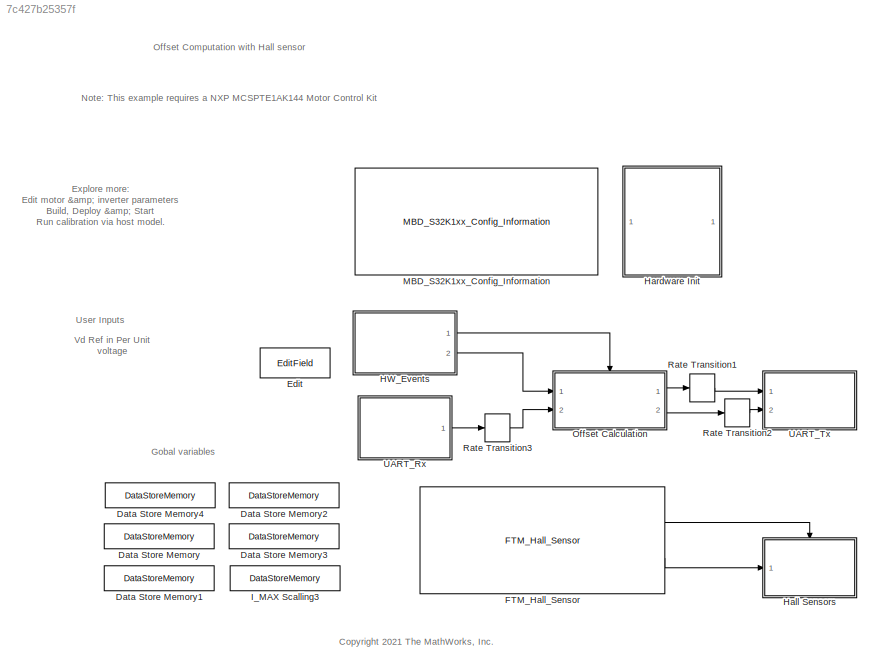
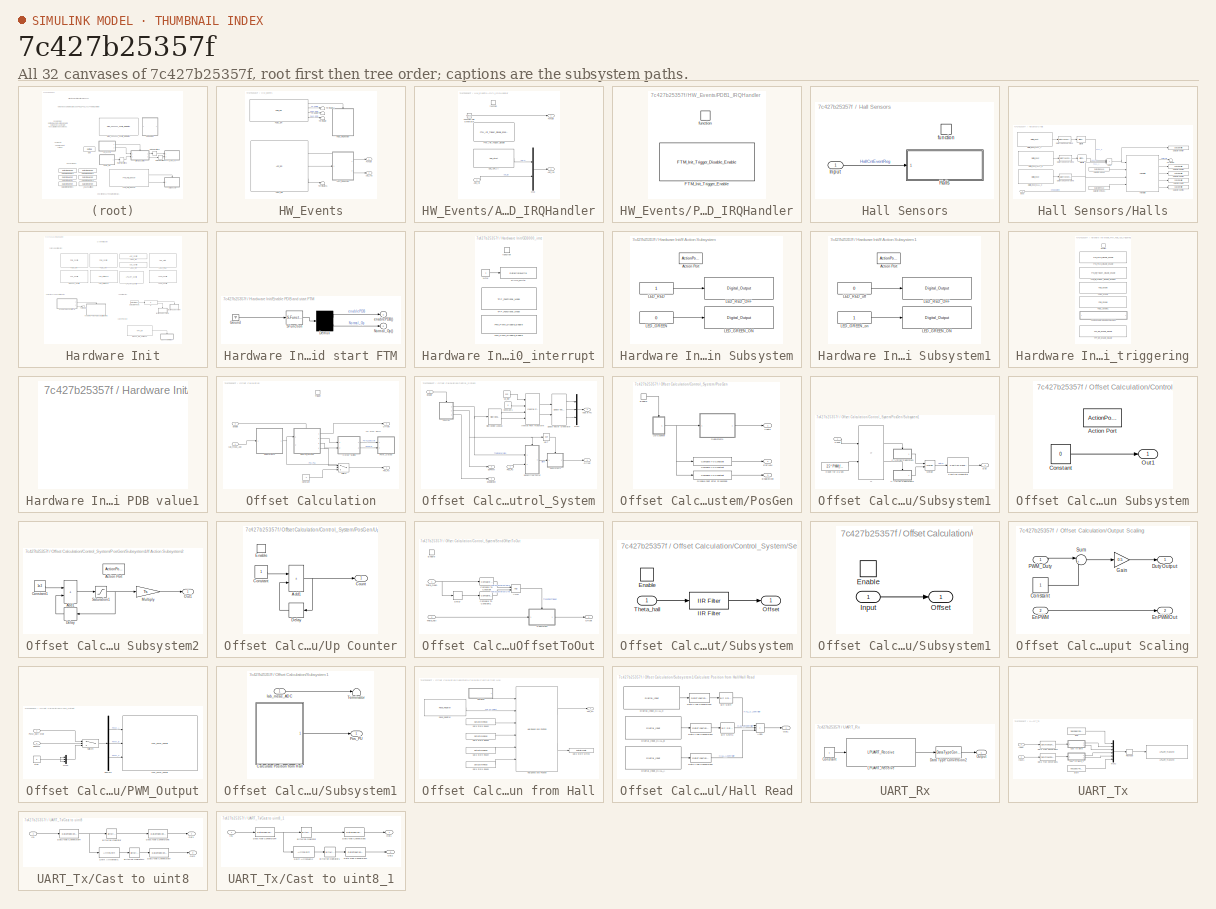
[diagram: thumbnail index - all 32 canvases of the model, root first then tree order]
MODEL slx_7c427b25357f
KIND model
CONFIG AbsTol = auto
CONFIG EnableMultiTasking = on
CONFIG FixedStep = 0.001
CONFIG InitFcn = mbd_s32k_consistency_checks(bdroot(gcs));
CONFIG MaxStep = auto
CONFIG MinStep = auto
CONFIG PreLoadFcn = mcb_pmsm_foc_hall_MCSPTE1AK144_data;
CONFIG RelTol = 1e-3
CONFIG SampleTimeConstraint = Unconstrained
CONFIG SolverName = FixedStepDiscrete
CONFIG StartTime = 0.0
CONFIG StopTime = 10.0
BLOCK [DataStoreMemory] Data Store Memory
  DataStoreName = HallStateChangeFlag
  ShowAdditionalParam = off
BLOCK [DataStoreMemory] Data Store Memory1
  DataStoreName = GlobalSpeedCount
  OutDataTypeStr = uint16
  ShowAdditionalParam = off
BLOCK [DataStoreMemory] Data Store Memory2
  DataStoreName = GlobalSpeedValidity
  NameLocation = left
  ShowAdditionalParam = off
BLOCK [DataStoreMemory] Data Store Memory3
  DataStoreName = GlobalDirection
  ShowAdditionalParam = off
BLOCK [DataStoreMemory] Data Store Memory4
  DataStoreName = GlobalHallState
  OutDataTypeStr = uint32
  ShowAdditionalParam = off
BLOCK [EditField] Edit
  Alignment = Center
  LabelPosition = Hide
  ShowInitialText = on
BLOCK [Reference] FTM_Hall_Sensor  REF=mbd_s32k1xx_ec_toolbox/Motor Control Blocks/FTM Blocks/FTM_Hall_Sensor
  Ports = [0, 2]
  SourceBlock = mbd_s32k1xx_ec_toolbox/Motor Control Blocks/FTM Blocks/FTM_Hall_Sensor
  SourceType = FTM_s32k_hall_sensor_block
BLOCK [SubSystem] HW_Events
  Ports = [0, 2]
  RequestExecContextInheritance = off
  TreatAsAtomicUnit = on
BLOCK [SubSystem] HW_Events/ADC1_IRQHandler
  Ports = [1, 2, 0, 1]
  RequestExecContextInheritance = off
  TreatAsAtomicUnit = on
BLOCK [Reference] HW_Events/ADC1_IRQHandler/ADC_AD4_IA  REF=mbd_s32k1xx_ec_toolbox/Motor Control Blocks/ADC Blocks/ADC_Start
  Ports = [0, 1]
  Priority = 2
  SourceBlock = mbd_s32k1xx_ec_toolbox/Motor Control Blocks/ADC Blocks/ADC_Start
  SourceType = adc_s32k_start_block
BLOCK [Inport] HW_Events/ADC1_IRQHandler/ADC_IB
BLOCK [Outport] HW_Events/ADC1_IRQHandler/ADC_res
  Port = 2
  VectorParamsAs1DForOutWhenUnconnected = off
BLOCK [Reference] HW_Events/ADC1_IRQHandler/FTM_Init_Trigger_Disable  REF=mbd_s32k1xx_ec_toolbox/Motor Control Blocks/FTM Blocks/FTM_Init_Trigger_Disable_Enable
  Ports = []
  Priority = 1
  SourceBlock = mbd_s32k1xx_ec_toolbox/Motor Control Blocks/FTM Blocks/FTM_Init_Trigger_Disable_Enable
  SourceType = FTM_s32k_init_disen
BLOCK [Outport] HW_Events/ADC1_IRQHandler/FcnCall
  VectorParamsAs1DForOutWhenUnconnected = off
BLOCK [Reference] HW_Events/ADC1_IRQHandler/Function-Call Generator  REF=simulink/Ports &
Subsystems/Function-Call
Generator
  Ports = [0, 1]
  SourceBlock = simulink/Ports &\nSubsystems/Function-Call\nGenerator
  SourceProductBaseCode = SL
  SourceType = Function-Call Generator
BLOCK [Mux] HW_Events/ADC1_IRQHandler/Mux
  DisplayOption = bar
  Inputs = 2
  Ports = [2, 1]
BLOCK [TriggerPort] HW_Events/ADC1_IRQHandler/function
  Ports = []
  StatesWhenEnabling = held
  TriggerType = function-call
  VariantControl = (inherit)
BLOCK [Reference] HW_Events/ADC1_ISR  REF=mbd_s32k1xx_ec_toolbox/Motor Control Blocks/ADC Blocks/ADC_ISR
  Ports = [0, 3]
  SourceBlock = mbd_s32k1xx_ec_toolbox/Motor Control Blocks/ADC Blocks/ADC_ISR
  SourceType = adc_s32k_isr_block
BLOCK [Outport] HW_Events/ADC_res
  Port = 2
  VectorParamsAs1DForOutWhenUnconnected = off
BLOCK [Outport] HW_Events/FcnCall
  VectorParamsAs1DForOutWhenUnconnected = off
BLOCK [SubSystem] HW_Events/PDB1_IRQHandler
  Ports = [0, 0, 0, 1]
  RequestExecContextInheritance = off
  TreatAsAtomicUnit = on
BLOCK [Reference] HW_Events/PDB1_IRQHandler/FTM_Init_Trigger_Enable  REF=mbd_s32k1xx_ec_toolbox/Motor Control Blocks/FTM Blocks/FTM_Init_Trigger_Disable_Enable
  Ports = []
  SourceBlock = mbd_s32k1xx_ec_toolbox/Motor Control Blocks/FTM Blocks/FTM_Init_Trigger_Disable_Enable
  SourceType = FTM_s32k_init_disen
BLOCK [TriggerPort] HW_Events/PDB1_IRQHandler/function
  Ports = []
  StatesWhenEnabling = held
  TriggerType = function-call
  VariantControl = (inherit)
BLOCK [Reference] HW_Events/PDB1_ISR  REF=mbd_s32k1xx_ec_toolbox/Motor Control Blocks/PDB Blocks/PDB_ISR
  Ports = [0, 4]
  Priority = 8
  SourceBlock = mbd_s32k1xx_ec_toolbox/Motor Control Blocks/PDB Blocks/PDB_ISR
  SourceType = pdb_s32k_isr_block
BLOCK [Terminator] HW_Events/Terminator
BLOCK [Terminator] HW_Events/Terminator1
BLOCK [Terminator] HW_Events/Terminator2
BLOCK [Terminator] HW_Events/Terminator6
BLOCK [SubSystem] Hall Sensors
  Ports = [1, 0, 0, 1]
  RequestExecContextInheritance = off
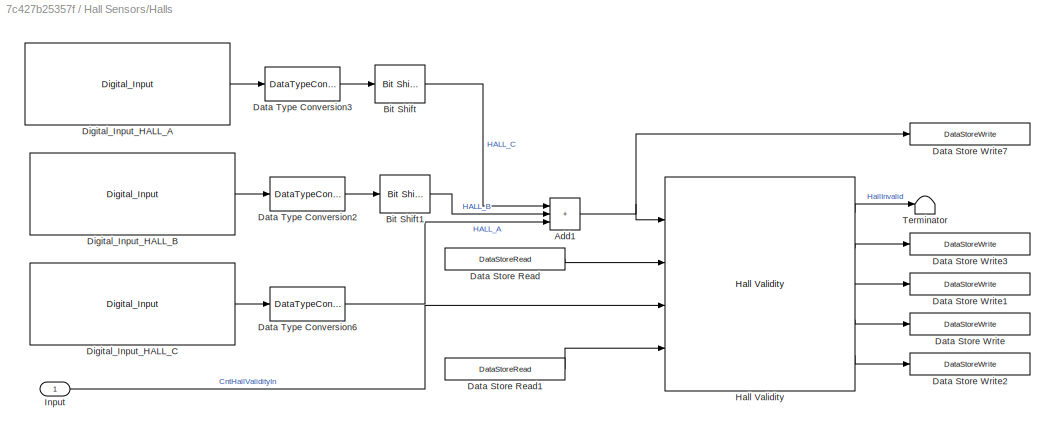
BLOCK [SubSystem] Hall Sensors/Halls
  MinAlgLoopOccurrences = on
  Ports = [1]
  Priority = 2
  RequestExecContextInheritance = off
  TreatAsAtomicUnit = on
BLOCK [Sum] Hall Sensors/Halls/Add1
  IconShape = rectangular
  Inputs = +++
  OutDataTypeStr = Inherit: Inherit via back propagation
  Ports = [3, 1]
BLOCK [Reference] Hall Sensors/Halls/Bit Shift  REF=hdlsllib/Logic and Bit
Operations/Bit Shift
  Ports = [1, 1]
  SourceBlock = hdlsllib/Logic and Bit\nOperations/Bit Shift
  SourceProductBaseCode = SL
  SourceType = Bit Shift
BLOCK [Reference] Hall Sensors/Halls/Bit Shift1  REF=hdlsllib/Logic and Bit
Operations/Bit Shift
  Ports = [1, 1]
  SourceBlock = hdlsllib/Logic and Bit\nOperations/Bit Shift
  SourceProductBaseCode = SL
  SourceType = Bit Shift
BLOCK [DataStoreRead] Hall Sensors/Halls/Data Store Read
  DataStoreName = GlobalHallState
  IndexOptions = Index vector (dialog)
  Indices = 1
  OutputSizes = 1
  Ports = [0, 1]
BLOCK [DataStoreRead] Hall Sensors/Halls/Data Store Read1
  DataStoreName = GlobalDirection
  IndexOptions = Index vector (dialog)
  Indices = 1
  OutputSizes = 1
  Ports = [0, 1]
BLOCK [DataStoreWrite] Hall Sensors/Halls/Data Store Write
  DataStoreName = GlobalSpeedValidity
  IndexOptions = Index vector (dialog)
  Indices = 1
  OutputSizes = 1
  Ports = [1]
BLOCK [DataStoreWrite] Hall Sensors/Halls/Data Store Write1
  DataStoreName = GlobalDirection
  IndexOptions = Index vector (dialog)
  Indices = 1
  OutputSizes = 1
  Ports = [1]
BLOCK [DataStoreWrite] Hall Sensors/Halls/Data Store Write2
  DataStoreName = HallStateChangeFlag
  IndexOptions = Index vector (dialog)
  Indices = 1
  OutputSizes = 1
  Ports = [1]
BLOCK [DataStoreWrite] Hall Sensors/Halls/Data Store Write3
  DataStoreName = GlobalSpeedCount
  IndexOptions = Index vector (dialog)
  Indices = 1
  OutputSizes = 1
  Ports = [1]
BLOCK [DataStoreWrite] Hall Sensors/Halls/Data Store Write7
  DataStoreName = GlobalHallState
  IndexOptions = Index vector (dialog)
  Indices = 1
  OutputSizes = 1
  Ports = [1]
  Priority = 1
BLOCK [DataTypeConversion] Hall Sensors/Halls/Data Type Conversion2
  OutDataTypeStr = uint32
  RndMeth = Floor
  SaturateOnIntegerOverflow = off
BLOCK [DataTypeConversion] Hall Sensors/Halls/Data Type Conversion3
  OutDataTypeStr = uint32
  RndMeth = Floor
  SaturateOnIntegerOverflow = off
BLOCK [DataTypeConversion] Hall Sensors/Halls/Data Type Conversion6
  OutDataTypeStr = uint32
  RndMeth = Floor
  SaturateOnIntegerOverflow = off
BLOCK [Reference] Hall Sensors/Halls/Digital_Input_HALL_A  REF=mbd_s32k1xx_ec_toolbox/GPIO Blocks/Digital_Input
  Ports = [0, 1]
  SourceBlock = mbd_s32k1xx_ec_toolbox/GPIO Blocks/Digital_Input
  SourceType = gpio_s32k_input
BLOCK [Reference] Hall Sensors/Halls/Digital_Input_HALL_B  REF=mbd_s32k1xx_ec_toolbox/GPIO Blocks/Digital_Input
  Ports = [0, 1]
  SourceBlock = mbd_s32k1xx_ec_toolbox/GPIO Blocks/Digital_Input
  SourceType = gpio_s32k_input
BLOCK [Reference] Hall Sensors/Halls/Digital_Input_HALL_C  REF=mbd_s32k1xx_ec_toolbox/GPIO Blocks/Digital_Input
  Ports = [0, 1]
  SourceBlock = mbd_s32k1xx_ec_toolbox/GPIO Blocks/Digital_Input
  SourceType = gpio_s32k_input
BLOCK [Reference] Hall Sensors/Halls/Hall Validity  REF=mcbpositiondecoderlib/Hall Validity
  Ports = [4, 5]
  SourceBlock = mcbpositiondecoderlib/Hall Validity
  SourceProductBaseCode = MT
  SourceType = Hall Validity
BLOCK [Inport] Hall Sensors/Halls/Input
BLOCK [Terminator] Hall Sensors/Halls/Terminator
BLOCK [Inport] Hall Sensors/Input
BLOCK [TriggerPort] Hall Sensors/function
  Ports = []
  StatesWhenEnabling = held
  TriggerType = function-call
  VariantControl = Variant
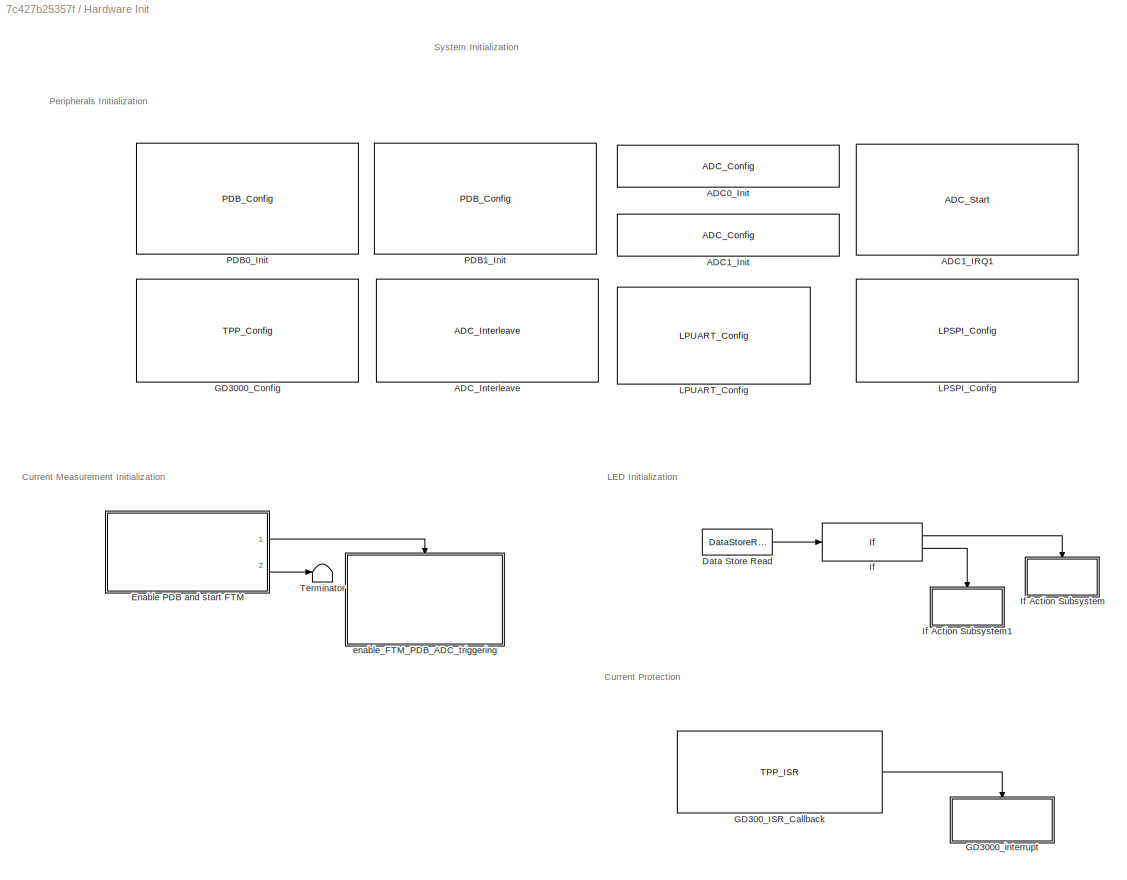
BLOCK [SubSystem] Hardware Init
  Ports = []
  Priority = 2
  RequestExecContextInheritance = off
  TreatAsAtomicUnit = on
BLOCK [Reference] Hardware Init/ADC0_Init  REF=mbd_s32k1xx_ec_toolbox/Motor Control Blocks/ADC Blocks/ADC_Config
  Ports = []
  Priority = 3
  SourceBlock = mbd_s32k1xx_ec_toolbox/Motor Control Blocks/ADC Blocks/ADC_Config
  SourceType = adc_s32k_config_block
BLOCK [Reference] Hardware Init/ADC1_IRQ1  REF=mbd_s32k1xx_ec_toolbox/Motor Control Blocks/ADC Blocks/ADC_Start
  Ports = []
  Priority = 5
  SourceBlock = mbd_s32k1xx_ec_toolbox/Motor Control Blocks/ADC Blocks/ADC_Start
  SourceType = adc_s32k_start_block
BLOCK [Reference] Hardware Init/ADC1_Init  REF=mbd_s32k1xx_ec_toolbox/Motor Control Blocks/ADC Blocks/ADC_Config
  Ports = []
  Priority = 4
  SourceBlock = mbd_s32k1xx_ec_toolbox/Motor Control Blocks/ADC Blocks/ADC_Config
  SourceType = adc_s32k_config_block
BLOCK [Reference] Hardware Init/ADC_Interleave  REF=mbd_s32k1xx_ec_toolbox/Motor Control Blocks/ADC Blocks/ADC_Interleave
  Ports = []
  SourceBlock = mbd_s32k1xx_ec_toolbox/Motor Control Blocks/ADC Blocks/ADC_Interleave
  SourceType = adc_s32k_interleave_block
BLOCK [DataStoreRead] Hardware Init/Data Store Read
  DataStoreName = FAULT
  IndexOptions = Index vector (dialog)
  Indices = 1
  OutputSizes = 1
  Ports = [0, 1]
BLOCK [SubSystem] Hardware Init/Enable PDB and start FTM
  ErrorFcn = Stateflow.Translate.translate
  PermitHierarchicalResolution = ExplicitOnly
  Ports = [0, 2]
  RequestExecContextInheritance = off
  SFBlockType = Chart
  TreatAsAtomicUnit = on
BLOCK [Demux] Hardware Init/Enable PDB and start FTM/ Demux 
  Outputs = 2
  Ports = [1, 2]
BLOCK [Ground] Hardware Init/Enable PDB and start FTM/ Ground 
BLOCK [S-Function] Hardware Init/Enable PDB and start FTM/ SFunction 
  EnableBusSupport = on
  FunctionName = sf_sfun
  PortCounts = [1 1]
  Ports = [1, 1]
  SFcnIsStateOwnerBlock = off
  SFunctionDeploymentMode = off
  Tag = Stateflow S-Function 1
BLOCK [Outport] Hardware Init/Enable PDB and start FTM/Normal_Op()
  Port = 2
  VectorParamsAs1DForOutWhenUnconnected = off
BLOCK [Outport] Hardware Init/Enable PDB and start FTM/enablePDB()
  VectorParamsAs1DForOutWhenUnconnected = off
BLOCK [Reference] Hardware Init/GD3000_Config  REF=mbd_msd_ec_toolbox/TPP/TPP_Config
  Ports = []
  Priority = 1
  SourceBlock = mbd_msd_ec_toolbox/TPP/TPP_Config
  SourceType = tpp_s32k_config
BLOCK [SubSystem] Hardware Init/GD3000_interrupt
  Ports = [0, 0, 0, 1]
  RequestExecContextInheritance = off
  TreatAsAtomicUnit = on
BLOCK [DataStoreWrite] Hardware Init/GD3000_interrupt/FAULT_write
  DataStoreName = FAULT
  IndexOptions = Index vector (dialog)
  Indices = 1
  OutputSizes = 1
  Ports = [1]
BLOCK [Reference] Hardware Init/GD3000_interrupt/FTM_PWM_Disable_Enable  REF=mbd_s32k1xx_ec_toolbox/Motor Control Blocks/FTM Blocks/FTM_PWM_Disable_Enable
  Ports = []
  SourceBlock = mbd_s32k1xx_ec_toolbox/Motor Control Blocks/FTM Blocks/FTM_PWM_Disable_Enable
  SourceType = FTM_s32k_pwm_disen
BLOCK [Constant] Hardware Init/GD3000_interrupt/NOK
  OutDataTypeStr = boolean
BLOCK [Reference] Hardware Init/GD3000_interrupt/TPP_Functional_Mode  REF=mbd_msd_ec_toolbox/TPP/TPP_Functional_Mode
  Ports = []
  SourceBlock = mbd_msd_ec_toolbox/TPP/TPP_Functional_Mode
  SourceType = TPP_functional_mode
BLOCK [TriggerPort] Hardware Init/GD3000_interrupt/function
  Ports = []
  StatesWhenEnabling = held
  TriggerType = function-call
  VariantControl = Variant
BLOCK [Reference] Hardware Init/GD300_ISR_Callback   REF=mbd_msd_ec_toolbox/TPP/TPP_ISR
  Ports = [0, 1]
  SourceBlock = mbd_msd_ec_toolbox/TPP/TPP_ISR
  SourceType = tpp_s32k_isr
BLOCK [If] Hardware Init/If
  IfExpression = u1 == 0
  Ports = [1, 2]
BLOCK [SubSystem] Hardware Init/If Action Subsystem
  Ports = [0, 0, 0, 0, 0, 0, 0, 1]
  RequestExecContextInheritance = off
  TreatAsAtomicUnit = on
BLOCK [ActionPort] Hardware Init/If Action Subsystem/Action Port
  ActionPortLabel = if(u1 == 0)
BLOCK [Constant] Hardware Init/If Action Subsystem/LED_GREEN
  OutDataTypeStr = boolean
  SampleTime = -1
  Value = 0
BLOCK [Reference] Hardware Init/If Action Subsystem/LED_GREEN_ON  REF=mbd_s32k1xx_ec_toolbox/GPIO Blocks/Digital_Output
  Ports = [1]
  SourceBlock = mbd_s32k1xx_ec_toolbox/GPIO Blocks/Digital_Output
  SourceType = gpio_s32k_output
BLOCK [Constant] Hardware Init/If Action Subsystem/LED_RED
  OutDataTypeStr = boolean
  SampleTime = -1
BLOCK [Reference] Hardware Init/If Action Subsystem/LED_RED_OFF  REF=mbd_s32k1xx_ec_toolbox/GPIO Blocks/Digital_Output
  Ports = [1]
  SourceBlock = mbd_s32k1xx_ec_toolbox/GPIO Blocks/Digital_Output
  SourceType = gpio_s32k_output
BLOCK [SubSystem] Hardware Init/If Action Subsystem1
  Ports = [0, 0, 0, 0, 0, 0, 0, 1]
  RequestExecContextInheritance = off
  TreatAsAtomicUnit = on
BLOCK [ActionPort] Hardware Init/If Action Subsystem1/Action Port
  ActionPortLabel = else
BLOCK [Reference] Hardware Init/If Action Subsystem1/LED_GREEN_ON  REF=mbd_s32k1xx_ec_toolbox/GPIO Blocks/Digital_Output
  Ports = [1]
  SourceBlock = mbd_s32k1xx_ec_toolbox/GPIO Blocks/Digital_Output
  SourceType = gpio_s32k_output
BLOCK [Constant] Hardware Init/If Action Subsystem1/LED_GREEN_on
  OutDataTypeStr = boolean
  SampleTime = -1
BLOCK [Reference] Hardware Init/If Action Subsystem1/LED_RED_OFF  REF=mbd_s32k1xx_ec_toolbox/GPIO Blocks/Digital_Output
  Ports = [1]
  SourceBlock = mbd_s32k1xx_ec_toolbox/GPIO Blocks/Digital_Output
  SourceType = gpio_s32k_output
BLOCK [Constant] Hardware Init/If Action Subsystem1/LED_RED_off
  OutDataTypeStr = boolean
  SampleTime = -1
  Value = 0
BLOCK [Reference] Hardware Init/LPSPI_Config   REF=mbd_s32k1xx_ec_toolbox/Communication Blocks/SPI Blocks/LPSPI_Config

  Ports = []
  SourceBlock = mbd_s32k1xx_ec_toolbox/Communication Blocks/SPI Blocks/LPSPI_Config
  SourceType = lpspi_s32k_config
BLOCK [Reference] Hardware Init/LPUART_Config  REF=mbd_s32k1xx_ec_toolbox/Communication Blocks/UART Blocks/LPUART_Config
  Ports = []
  Priority = 1
  SourceBlock = mbd_s32k1xx_ec_toolbox/Communication Blocks/UART Blocks/LPUART_Config
  SourceType = lpuart_s32k_config
BLOCK [Reference] Hardware Init/PDB0_Init  REF=mbd_s32k1xx_ec_toolbox/Motor Control Blocks/PDB Blocks/PDB_Config
  Ports = []
  Priority = 1
  SourceBlock = mbd_s32k1xx_ec_toolbox/Motor Control Blocks/PDB Blocks/PDB_Config
  SourceType = pdb_s32k_config_block
BLOCK [Reference] Hardware Init/PDB1_Init  REF=mbd_s32k1xx_ec_toolbox/Motor Control Blocks/PDB Blocks/PDB_Config
  Ports = []
  Priority = 2
  SourceBlock = mbd_s32k1xx_ec_toolbox/Motor Control Blocks/PDB Blocks/PDB_Config
  SourceType = pdb_s32k_config_block
BLOCK [Terminator] Hardware Init/Terminator
BLOCK [SubSystem] Hardware Init/enable_FTM_PDB_ADC_triggering
  Ports = [0, 0, 0, 1]
  RTWSystemCode = Inline
  RequestExecContextInheritance = off
  TreatAsAtomicUnit = on
BLOCK [SubSystem] Hardware Init/enable_FTM_PDB_ADC_triggering/Custom code to reload the PDB value1
  CopyFcn = cccopyfcn(gcb)
  OpenFcn = ccopenfcn('System Outputs Function')
  Ports = []
  Priority = 6
  RequestExecContextInheritance = off
BLOCK [Reference] Hardware Init/enable_FTM_PDB_ADC_triggering/FTM_Init_Trigger_Disable_Enable1  REF=mbd_s32k1xx_ec_toolbox/Motor Control Blocks/FTM Blocks/FTM_Init_Trigger_Disable_Enable
  Ports = []
  Priority = 3
  SourceBlock = mbd_s32k1xx_ec_toolbox/Motor Control Blocks/FTM Blocks/FTM_Init_Trigger_Disable_Enable
  SourceType = FTM_s32k_init_disen
BLOCK [Reference] Hardware Init/enable_FTM_PDB_ADC_triggering/FTM_PWM_Disable_Enable  REF=mbd_s32k1xx_ec_toolbox/Motor Control Blocks/FTM Blocks/FTM_PWM_Disable_Enable
  Ports = []
  Priority = 1
  SourceBlock = mbd_s32k1xx_ec_toolbox/Motor Control Blocks/FTM Blocks/FTM_PWM_Disable_Enable
  SourceType = FTM_s32k_pwm_disen
BLOCK [Reference] Hardware Init/enable_FTM_PDB_ADC_triggering/PDB0_Enable  REF=mbd_s32k1xx_ec_toolbox/Motor Control Blocks/PDB Blocks/PDB_Enable
  Ports = []
  Priority = 4
  SourceBlock = mbd_s32k1xx_ec_toolbox/Motor Control Blocks/PDB Blocks/PDB_Enable
  SourceType = pdb_s32k_enable_block
BLOCK [Reference] Hardware Init/enable_FTM_PDB_ADC_triggering/PDB1_Enable1  REF=mbd_s32k1xx_ec_toolbox/Motor Control Blocks/PDB Blocks/PDB_Enable
  Ports = []
  Priority = 5
  SourceBlock = mbd_s32k1xx_ec_toolbox/Motor Control Blocks/PDB Blocks/PDB_Enable
  SourceType = pdb_s32k_enable_block
BLOCK [Reference] Hardware Init/enable_FTM_PDB_ADC_triggering/TPP_ISR_Enable_Disable   REF=mbd_msd_ec_toolbox/TPP/TPP_ISR_Enable_Disable
  Ports = []
  Priority = 4
  SourceBlock = mbd_msd_ec_toolbox/TPP/TPP_ISR_Enable_Disable
  SourceType = tpp_s32k_int_en_dis
BLOCK [TriggerPort] Hardware Init/enable_FTM_PDB_ADC_triggering/function
  Ports = []
  StatesWhenEnabling = held
  TriggerType = function-call
  VariantControl = (inherit)
BLOCK [DataStoreMemory] I_MAX Scalling3
  DataStoreName = FAULT
  OutDataTypeStr = boolean
  ReadBeforeWriteMsg = warning
  ShowAdditionalParam = off
  WriteAfterReadMsg = warning
  WriteAfterWriteMsg = warning
BLOCK [Reference] MBD_S32K1xx_Config_Information  REF=mbd_s32k1xx_ec_toolbox/MBD_S32K1xx_Config_Information
  Ports = []
  Priority = 1
  SourceBlock = mbd_s32k1xx_ec_toolbox/MBD_S32K1xx_Config_Information
  SourceType = MBDTBX_EC_S32K
BLOCK [SubSystem] Offset Calculation
  Ports = [2, 2, 0, 1]
  RTWMemSecFuncExecute = code_ramfuncs
  RequestExecContextInheritance = off
BLOCK [Constant] Offset Calculation/Constant
  OutDataTypeStr = dataType
  Value = -1
BLOCK [SubSystem] Offset Calculation/Control_System
  PortSchema = {"entries":[{"content":{"sides":[{"content":{"connectorIds":["In1"]},"type":"ConnectorPlacement.EquallySpacedRectSide","uuid":"173f19dc-215a-42db-973a-f41a5d08ea9f"},{"content":{"connectorIds":["Out1","Out2","Out3","Out4"],"side":"RIGHT"},"type":"ConnectorPlacement.EquallySpacedRectSide","uuid":"cd99c6ca-9263-4750-8ed8-89a3541b6698"},{"content":{"connectorIds":["In2"],"side":"TOP"},"type":"Connect...<+266ch>
  Ports = [2, 4]
  Priority = 2
  RequestExecContextInheritance = off
  TreatAsAtomicUnit = on
BLOCK [Constant] Offset Calculation/Control_System/Constant1
  OutDataTypeStr = dataType
  SampleTime = -1
  Value = 0
BLOCK [Outport] Offset Calculation/Control_System/EnPWM
  Port = 3
  VectorParamsAs1DForOutWhenUnconnected = off
BLOCK [Inport] Offset Calculation/Control_System/Enable
  Port = 2
BLOCK [Outport] Offset Calculation/Control_System/EnableHost
  Port = 4
  VectorParamsAs1DForOutWhenUnconnected = off
BLOCK [Reference] Offset Calculation/Control_System/Inverse Park Transform  REF=mcbcontrolslib/Inverse Park Transform
  Ports = [4, 2]
  SourceBlock = mcbcontrolslib/Inverse Park Transform
  SourceProductBaseCode = MT
  SourceType = Inverse Park Transform
BLOCK [Mux] Offset Calculation/Control_System/Mux1
  DisplayOption = bar
  Inputs = 3
  Ports = [3, 1]
BLOCK [Logic] Offset Calculation/Control_System/NOT
  AllPortsSameDT = off
  IconShape = distinctive
  Operator = NOT
  OutDataTypeStr = boolean
  Ports = [1, 1]
BLOCK [Outport] Offset Calculation/Control_System/Offset
  VectorParamsAs1DForOutWhenUnconnected = off
BLOCK [SubSystem] Offset Calculation/Control_System/PosGen
  Ports = [0, 3, 1]
  RequestExecContextInheritance = off
BLOCK [Reference] Offset Calculation/Control_System/PosGen/Compare To Constant  REF=simulink/Logic and Bit
Operations/Compare
To Constant
  Ports = [1, 1]
  SourceBlock = simulink/Logic and Bit\nOperations/Compare\nTo Constant
  SourceProductBaseCode = SL
  SourceType = Compare To Constant
BLOCK [Reference] Offset Calculation/Control_System/PosGen/Disable host after 22 seconds  REF=simulink/Logic and Bit
Operations/Compare
To Constant
  Ports = [1, 1]
  SourceBlock = simulink/Logic and Bit\nOperations/Compare\nTo Constant
  SourceProductBaseCode = SL
  SourceType = Compare To Constant
BLOCK [Outport] Offset Calculation/Control_System/PosGen/EnPWM
  InitialOutput = 0
  OutputWhenDisabled = reset
  Port = 2
  VectorParamsAs1DForOutWhenUnconnected = off
BLOCK [EnablePort] Offset Calculation/Control_System/PosGen/Enable
  Ports = [0, 1]
  ShowOutputPort = on
  StatesWhenEnabling = reset
BLOCK [Outport] Offset Calculation/Control_System/PosGen/EnableHost
  InitialOutput = 0
  OutputWhenDisabled = reset
  Port = 3
  VectorParamsAs1DForOutWhenUnconnected = off
BLOCK [SubSystem] Offset Calculation/Control_System/PosGen/Subsystem1
  Ports = [1, 1]
  RequestExecContextInheritance = off
BLOCK [Inport] Offset Calculation/Control_System/PosGen/Subsystem1/Count
BLOCK [Constant] Offset Calculation/Control_System/PosGen/Subsystem1/Count for 2.5 sec
  OutDataTypeStr = uint32
  SampleTime = -1
  Value = 2.5 * PWM_frequency / 2
BLOCK [Outport] Offset Calculation/Control_System/PosGen/Subsystem1/Eps
BLOCK [If] Offset Calculation/Control_System/PosGen/Subsystem1/If
  IfExpression = u1 < u2
  NumInputs = 2
  Ports = [2, 2]
BLOCK [SubSystem] Offset Calculation/Control_System/PosGen/Subsystem1/If Action Subsystem
  Ports = [0, 1, 0, 0, 0, 0, 0, 1]
  RequestExecContextInheritance = off
  TreatAsAtomicUnit = on
BLOCK [ActionPort] Offset Calculation/Control_System/PosGen/Subsystem1/If Action Subsystem/Action Port
  ActionPortLabel = if(u1 < u2)
BLOCK [Constant] Offset Calculation/Control_System/PosGen/Subsystem1/If Action Subsystem/Constant
  OutDataTypeStr = dataType
  Value = 0
BLOCK [Outport] Offset Calculation/Control_System/PosGen/Subsystem1/If Action Subsystem/Out1
BLOCK [SubSystem] Offset Calculation/Control_System/PosGen/Subsystem1/If Action Subsystem2
  Ports = [0, 1, 0, 0, 0, 0, 0, 1]
  RequestExecContextInheritance = off
  TreatAsAtomicUnit = on
BLOCK [ActionPort] Offset Calculation/Control_System/PosGen/Subsystem1/If Action Subsystem2/Action Port
  ActionPortLabel = else
BLOCK [Sum] Offset Calculation/Control_System/PosGen/Subsystem1/If Action Subsystem2/Add1
  IconShape = rectangular
  Ports = [2, 1]
BLOCK [Constant] Offset Calculation/Control_System/PosGen/Subsystem1/If Action Subsystem2/Constant1
  OutDataTypeStr = dataType
  Value = 1e-3
BLOCK [Delay] Offset Calculation/Control_System/PosGen/Subsystem1/If Action Subsystem2/Delay
  DelayLength = 1
  InputPortMap = u0
  Ports = [1, 1]
BLOCK [Gain] Offset Calculation/Control_System/PosGen/Subsystem1/If Action Subsystem2/Multiply
  Gain = Ts
  OutDataTypeStr = Inherit: Same as input
BLOCK [Outport] Offset Calculation/Control_System/PosGen/Subsystem1/If Action Subsystem2/Out1
BLOCK [Saturate] Offset Calculation/Control_System/PosGen/Subsystem1/If Action Subsystem2/Saturation1
  LowerLimit = 0
  UpperLimit = 2 * pmsm.p
BLOCK [Merge] Offset Calculation/Control_System/PosGen/Subsystem1/Merge
  Ports = [2, 1]
BLOCK [Reference] Offset Calculation/Control_System/PosGen/Subsystem1/Position Generator  REF=mcbcontrolslib/Position Generator
  Ports = [1, 1]
  SourceBlock = mcbcontrolslib/Position Generator
  SourceProductBaseCode = MT
  SourceType = Position Generator
BLOCK [Outport] Offset Calculation/Control_System/PosGen/Theta
BLOCK [SubSystem] Offset Calculation/Control_System/PosGen/Up Counter
  Ports = [0, 1, 1]
  RequestExecContextInheritance = off
BLOCK [Sum] Offset Calculation/Control_System/PosGen/Up Counter/Add1
  IconShape = rectangular
  Ports = [2, 1]
  SaturateOnIntegerOverflow = on
BLOCK [Constant] Offset Calculation/Control_System/PosGen/Up Counter/Constant
  OutDataTypeStr = uint32
BLOCK [Outport] Offset Calculation/Control_System/PosGen/Up Counter/Count
  InitialOutput = 0
  OutputWhenDisabled = reset
BLOCK [Delay] Offset Calculation/Control_System/PosGen/Up Counter/Delay
  DelayLength = 1
  InputPortMap = u0
  Ports = [1, 1]
BLOCK [EnablePort] Offset Calculation/Control_System/PosGen/Up Counter/Enable
  Ports = []
  StatesWhenEnabling = reset
BLOCK [Inport] Offset Calculation/Control_System/Pos_PU
BLOCK [SubSystem] Offset Calculation/Control_System/SendOffsetToOut
  Ports = [2, 1, 1]
  RequestExecContextInheritance = off
BLOCK [Logic] Offset Calculation/Control_System/SendOffsetToOut/AND
  AllPortsSameDT = off
  OutDataTypeStr = boolean
  Ports = [2, 1]
BLOCK [Reference] Offset Calculation/Control_System/SendOffsetToOut/Compare To Constant  REF=simulink/Logic and Bit
Operations/Compare
To Constant
  Ports = [1, 1]
  SourceBlock = simulink/Logic and Bit\nOperations/Compare\nTo Constant
  SourceProductBaseCode = SL
  SourceType = Compare To Constant
BLOCK [Reference] Offset Calculation/Control_System/SendOffsetToOut/Compare To Constant1  REF=simulink/Logic and Bit
Operations/Compare
To Constant
  Ports = [1, 1]
  SourceBlock = simulink/Logic and Bit\nOperations/Compare\nTo Constant
  SourceProductBaseCode = SL
  SourceType = Compare To Constant
BLOCK [Delay] Offset Calculation/Control_System/SendOffsetToOut/Delay
  DelayLength = 1
  InputPortMap = u0
  Ports = [1, 1]
BLOCK [EnablePort] Offset Calculation/Control_System/SendOffsetToOut/Enable
  Ports = []
  StatesWhenEnabling = reset
BLOCK [Outport] Offset Calculation/Control_System/SendOffsetToOut/Offset
BLOCK [SubSystem] Offset Calculation/Control_System/SendOffsetToOut/Subsystem
  Ports = [1, 1, 1]
  RequestExecContextInheritance = off
BLOCK [EnablePort] Offset Calculation/Control_System/SendOffsetToOut/Subsystem/Enable
  Ports = []
BLOCK [Reference] Offset Calculation/Control_System/SendOffsetToOut/Subsystem/IIR Filter  REF=mcbcontrolslib/IIR Filter
  Ports = [1, 1]
  SourceBlock = mcbcontrolslib/IIR Filter
  SourceProductBaseCode = MT
  SourceType = IIR Filter
BLOCK [Outport] Offset Calculation/Control_System/SendOffsetToOut/Subsystem/Offset
BLOCK [Inport] Offset Calculation/Control_System/SendOffsetToOut/Subsystem/Theta_hall
BLOCK [Inport] Offset Calculation/Control_System/SendOffsetToOut/Theta_Open
BLOCK [Inport] Offset Calculation/Control_System/SendOffsetToOut/Theta_hall
  Port = 2
BLOCK [Reference] Offset Calculation/Control_System/Sine-Cosine Lookup  REF=mcbcontrolslib/Sine-Cosine Lookup
  Ports = [1, 2]
  SourceBlock = mcbcontrolslib/Sine-Cosine Lookup
  SourceProductBaseCode = MT
  SourceType = Sine-Cosine Lookup
BLOCK [Reference] Offset Calculation/Control_System/Space Vector Generator  REF=mcbcontrolslib/Space Vector Generator
  Ports = [2, 3]
  SourceBlock = mcbcontrolslib/Space Vector Generator
  SourceProductBaseCode = MT
  SourceType = Space Vector Generator
BLOCK [SubSystem] Offset Calculation/Control_System/Subsystem1
  Ports = [1, 1, 1]
  RequestExecContextInheritance = off
BLOCK [EnablePort] Offset Calculation/Control_System/Subsystem1/Enable
  Ports = []
BLOCK [Inport] Offset Calculation/Control_System/Subsystem1/Input
BLOCK [Outport] Offset Calculation/Control_System/Subsystem1/Offset
BLOCK [Outport] Offset Calculation/Control_System/Vabc in PU
  Port = 2
  VectorParamsAs1DForOutWhenUnconnected = off
BLOCK [Constant] Offset Calculation/Control_System/Vd_Ref
  OutDataTypeStr = dataType
  Value = 0.25
BLOCK [Inport] Offset Calculation/Enable
  Port = 2
BLOCK [Inport] Offset Calculation/Iab_meas_ADC
BLOCK [Outport] Offset Calculation/Offset
  Port = 2
BLOCK [SubSystem] Offset Calculation/Output Scaling
  Ports = [2, 2]
  Priority = 3
  RequestExecContextInheritance = off
  TreatAsAtomicUnit = on
BLOCK [Constant] Offset Calculation/Output Scaling/Constant
  OutDataTypeStr = dataType
BLOCK [Outport] Offset Calculation/Output Scaling/Duty Output
BLOCK [Inport] Offset Calculation/Output Scaling/EnPWM
  Port = 2
BLOCK [Outport] Offset Calculation/Output Scaling/EnPWMOut
  Port = 2
  VectorParamsAs1DForOutWhenUnconnected = off
BLOCK [Gain] Offset Calculation/Output Scaling/Gain
  Gain = 0.5
  OutDataTypeStr = Inherit: Same as input
  RndMeth = Simplest
BLOCK [Inport] Offset Calculation/Output Scaling/PWM_Duty
BLOCK [Sum] Offset Calculation/Output Scaling/Sum
  AccumDataTypeStr = Inherit: Same as first input
  Inputs = |++
  OutDataTypeStr = Inherit: Same as first input
  Ports = [2, 1]
  RndMeth = Simplest
BLOCK [SubSystem] Offset Calculation/PWM_Output
  Ports = [2]
  Priority = 4
  RequestExecContextInheritance = off
  TreatAsAtomicUnit = on
BLOCK [Demux] Offset Calculation/PWM_Output/Demux1
  Outputs = 3
  Ports = [1, 3]
BLOCK [Inport] Offset Calculation/PWM_Output/EnPWM
  Port = 2
BLOCK [Reference] Offset Calculation/PWM_Output/FTM_PWM_Config  REF=mbd_s32k1xx_ec_toolbox/Motor Control Blocks/FTM Blocks/FTM_PWM_Config
  Ports = [3]
  SourceBlock = mbd_s32k1xx_ec_toolbox/Motor Control Blocks/FTM Blocks/FTM_PWM_Config
  SourceType = FTM_s32k_pwm_config_block
BLOCK [Mux] Offset Calculation/PWM_Output/Mux2
  DisplayOption = bar
  Inputs = 3
  Ports = [3, 1]
BLOCK [Inport] Offset Calculation/PWM_Output/PWM_Duty Cycle
BLOCK [Switch] Offset Calculation/PWM_Output/Switch4
  InputSameDT = off
  RndMeth = Simplest
  SaturateOnIntegerOverflow = off
  Threshold = 0.5
BLOCK [Constant] Offset Calculation/PWM_Output/stop
  OutDataTypeStr = single
  Value = 0
BLOCK [Outport] Offset Calculation/Pos_PU
BLOCK [SubSystem] Offset Calculation/Subsystem1
  MinAlgLoopOccurrences = on
  Ports = [1, 1]
  Priority = 1
  RequestExecContextInheritance = off
  TreatAsAtomicUnit = on
BLOCK [SubSystem] Offset Calculation/Subsystem1/Calculate Position from Hall
  Ports = [0, 1]
  RequestExecContextInheritance = off
BLOCK [DataStoreRead] Offset Calculation/Subsystem1/Calculate Position from Hall/Data Store Read2
  DataStoreName = GlobalSpeedCount
  IndexOptions = Index vector (dialog)
  Indices = 1
  OutputSizes = 1
  Ports = [0, 1]
BLOCK [DataStoreRead] Offset Calculation/Subsystem1/Calculate Position from Hall/Data Store Read3
  DataStoreName = GlobalDirection
  IndexOptions = Index vector (dialog)
  Indices = 1
  OutputSizes = 1
  Ports = [0, 1]
BLOCK [DataStoreRead] Offset Calculation/Subsystem1/Calculate Position from Hall/Data Store Read4
  DataStoreName = GlobalSpeedValidity
  IndexOptions = Index vector (dialog)
  Indices = 1
  OutputSizes = 1
  Ports = [0, 1]
BLOCK [DataStoreRead] Offset Calculation/Subsystem1/Calculate Position from Hall/Data Store Read5
  DataStoreName = HallStateChangeFlag
  IndexOptions = Index vector (dialog)
  Indices = 1
  OutputSizes = 1
  Ports = [0, 1]
  Priority = 1
BLOCK [DataStoreWrite] Offset Calculation/Subsystem1/Calculate Position from Hall/Data Store Write2
  DataStoreName = HallStateChangeFlag
  IndexOptions = Index vector (dialog)
  Indices = 1
  OutputSizes = 1
  Ports = [1]
  Priority = 2
BLOCK [SubSystem] Offset Calculation/Subsystem1/Calculate Position from Hall/Hall Read
  Ports = [0, 1]
  RequestExecContextInheritance = off
BLOCK [Sum] Offset Calculation/Subsystem1/Calculate Position from Hall/Hall Read/Add1
  IconShape = rectangular
  Inputs = +++
  OutDataTypeStr = Inherit: Inherit via back propagation
  Ports = [3, 1]
BLOCK [Reference] Offset Calculation/Subsystem1/Calculate Position from Hall/Hall Read/Bit Shift  REF=hdlsllib/Logic and Bit
Operations/Bit Shift
  Ports = [1, 1]
  SourceBlock = hdlsllib/Logic and Bit\nOperations/Bit Shift
  SourceProductBaseCode = SL
  SourceType = Bit Shift
BLOCK [Reference] Offset Calculation/Subsystem1/Calculate Position from Hall/Hall Read/Bit Shift1  REF=hdlsllib/Logic and Bit
Operations/Bit Shift
  Ports = [1, 1]
  SourceBlock = hdlsllib/Logic and Bit\nOperations/Bit Shift
  SourceProductBaseCode = SL
  SourceType = Bit Shift
BLOCK [DataTypeConversion] Offset Calculation/Subsystem1/Calculate Position from Hall/Hall Read/Data Type Conversion2
  OutDataTypeStr = uint32
  RndMeth = Floor
  SaturateOnIntegerOverflow = off
BLOCK [DataTypeConversion] Offset Calculation/Subsystem1/Calculate Position from Hall/Hall Read/Data Type Conversion3
  OutDataTypeStr = uint32
  RndMeth = Floor
  SaturateOnIntegerOverflow = off
BLOCK [DataTypeConversion] Offset Calculation/Subsystem1/Calculate Position from Hall/Hall Read/Data Type Conversion6
  OutDataTypeStr = uint32
  RndMeth = Floor
  SaturateOnIntegerOverflow = off
BLOCK [Reference] Offset Calculation/Subsystem1/Calculate Position from Hall/Hall Read/Digital_Input_HALL_A  REF=mbd_s32k1xx_ec_toolbox/GPIO Blocks/Digital_Input
  Ports = [0, 1]
  SourceBlock = mbd_s32k1xx_ec_toolbox/GPIO Blocks/Digital_Input
  SourceType = gpio_s32k_input
BLOCK [Reference] Offset Calculation/Subsystem1/Calculate Position from Hall/Hall Read/Digital_Input_HALL_B  REF=mbd_s32k1xx_ec_toolbox/GPIO Blocks/Digital_Input
  Ports = [0, 1]
  SourceBlock = mbd_s32k1xx_ec_toolbox/GPIO Blocks/Digital_Input
  SourceType = gpio_s32k_input
BLOCK [Reference] Offset Calculation/Subsystem1/Calculate Position from Hall/Hall Read/Digital_Input_HALL_C  REF=mbd_s32k1xx_ec_toolbox/GPIO Blocks/Digital_Input
  Ports = [0, 1]
  SourceBlock = mbd_s32k1xx_ec_toolbox/GPIO Blocks/Digital_Input
  SourceType = gpio_s32k_input
BLOCK [Outport] Offset Calculation/Subsystem1/Calculate Position from Hall/Hall Read/Out1
BLOCK [Reference] Offset Calculation/Subsystem1/Calculate Position from Hall/Hall Speed and Position  REF=mcbpositiondecoderlib/Hall Speed and Position
  Ports = [6, 2]
  SourceBlock = mcbpositiondecoderlib/Hall Speed and Position
  SourceProductBaseCode = MT
  SourceType = Hall Speed and Position
BLOCK [Outport] Offset Calculation/Subsystem1/Calculate Position from Hall/Pos_PU
  InitialOutput = 0
  VectorParamsAs1DForOutWhenUnconnected = off
BLOCK [Reference] Offset Calculation/Subsystem1/Calculate Position from Hall/Read_Register  REF=mbd_s32k1xx_ec_toolbox/Utility Blocks/Read_Register
  Ports = [0, 1]
  SourceBlock = mbd_s32k1xx_ec_toolbox/Utility Blocks/Read_Register
  SourceType = register_s32k_read
BLOCK [Inport] Offset Calculation/Subsystem1/Iab_meas_ADC
BLOCK [Outport] Offset Calculation/Subsystem1/Pos_PU
  VectorParamsAs1DForOutWhenUnconnected = off
BLOCK [Terminator] Offset Calculation/Subsystem1/Terminator
BLOCK [Switch] Offset Calculation/Switch
  Criteria = u2 > Threshold
  InputSameDT = off
  SaturateOnIntegerOverflow = off
  Threshold = 0.5
BLOCK [TriggerPort] Offset Calculation/Trigger
  Ports = []
  StatesWhenEnabling = held
  TriggerType = function-call
  VariantControl = Variant
BLOCK [RateTransition] Rate Transition1
BLOCK [RateTransition] Rate Transition2
BLOCK [RateTransition] Rate Transition3
BLOCK [SubSystem] UART_Rx
  Ports = [0, 1]
  RequestExecContextInheritance = off
BLOCK [Constant] UART_Rx/Constant
  OutDataTypeStr = Inherit: Inherit via back propagation
BLOCK [DataTypeConversion] UART_Rx/Data Type Conversion2
  RndMeth = Simplest
  SaturateOnIntegerOverflow = off
BLOCK [Reference] UART_Rx/LPUART_Receive  REF=mbd_s32k1xx_ec_toolbox/Communication Blocks/UART Blocks/LPUART_Receive
  Ports = [1, 1]
  SourceBlock = mbd_s32k1xx_ec_toolbox/Communication Blocks/UART Blocks/LPUART_Receive
  SourceType = lpuart_s32k_receive
BLOCK [Outport] UART_Rx/Output
BLOCK [SubSystem] UART_Tx
  Ports = [2]
  RequestExecContextInheritance = off
  SystemSampleTime = Ts_uart
  TreatAsAtomicUnit = on
BLOCK [SubSystem] UART_Tx/Cast to uint8
  Ports = [1, 2]
  RequestExecContextInheritance = off
BLOCK [Reference] UART_Tx/Cast to uint8/Bitwise Operator  REF=simulink/Logic and Bit
Operations/Bitwise
Operator
  Ports = [1, 1]
  SourceBlock = simulink/Logic and Bit\nOperations/Bitwise\nOperator
  SourceProductBaseCode = SL
  SourceType = Bitwise Operator
BLOCK [Reference] UART_Tx/Cast to uint8/Bitwise Operator1  REF=simulink/Logic and Bit
Operations/Bitwise
Operator
  Ports = [1, 1]
  SourceBlock = simulink/Logic and Bit\nOperations/Bitwise\nOperator
  SourceProductBaseCode = SL
  SourceType = Bitwise Operator
BLOCK [DataTypeConversion] UART_Tx/Cast to uint8/Data Type Conversion4
  ConvertRealWorld = Stored Integer (SI)
  OutDataTypeStr = uint16
  RndMeth = Simplest
  SaturateOnIntegerOverflow = off
BLOCK [DataTypeConversion] UART_Tx/Cast to uint8/Data Type Conversion6
  OutDataTypeStr = uint8
  RndMeth = Simplest
  SaturateOnIntegerOverflow = off
BLOCK [DataTypeConversion] UART_Tx/Cast to uint8/Data Type Conversion7
  OutDataTypeStr = uint8
  RndMeth = Simplest
  SaturateOnIntegerOverflow = off
BLOCK [Inport] UART_Tx/Cast to uint8/In1
BLOCK [Outport] UART_Tx/Cast to uint8/Out1
BLOCK [Outport] UART_Tx/Cast to uint8/Out2
  Port = 2
BLOCK [ArithShift] UART_Tx/Cast to uint8/Shift Arithmetic
  BitShiftDirection = Right
  BitShiftNumber = 8
  InputPortMap = u0
  Ports = [1, 1]
BLOCK [SubSystem] UART_Tx/Cast to uint8_1
  Ports = [1, 2]
  RequestExecContextInheritance = off
BLOCK [Reference] UART_Tx/Cast to uint8_1/Bitwise Operator  REF=simulink/Logic and Bit
Operations/Bitwise
Operator
  Ports = [1, 1]
  SourceBlock = simulink/Logic and Bit\nOperations/Bitwise\nOperator
  SourceProductBaseCode = SL
  SourceType = Bitwise Operator
BLOCK [Reference] UART_Tx/Cast to uint8_1/Bitwise Operator1  REF=simulink/Logic and Bit
Operations/Bitwise
Operator
  Ports = [1, 1]
  SourceBlock = simulink/Logic and Bit\nOperations/Bitwise\nOperator
  SourceProductBaseCode = SL
  SourceType = Bitwise Operator
BLOCK [DataTypeConversion] UART_Tx/Cast to uint8_1/Data Type Conversion4
  ConvertRealWorld = Stored Integer (SI)
  OutDataTypeStr = uint16
  RndMeth = Simplest
  SaturateOnIntegerOverflow = off
BLOCK [DataTypeConversion] UART_Tx/Cast to uint8_1/Data Type Conversion6
  OutDataTypeStr = uint8
  RndMeth = Simplest
  SaturateOnIntegerOverflow = off
BLOCK [DataTypeConversion] UART_Tx/Cast to uint8_1/Data Type Conversion7
  OutDataTypeStr = uint8
  RndMeth = Simplest
  SaturateOnIntegerOverflow = off
BLOCK [Inport] UART_Tx/Cast to uint8_1/In1
BLOCK [Outport] UART_Tx/Cast to uint8_1/Out1
BLOCK [Outport] UART_Tx/Cast to uint8_1/Out2
  Port = 2
BLOCK [ArithShift] UART_Tx/Cast to uint8_1/Shift Arithmetic
  BitShiftDirection = Right
  BitShiftNumber = 8
  InputPortMap = u0
  Ports = [1, 1]
BLOCK [DataTypeConversion] UART_Tx/Data Type Conversion1
  OutDataTypeStr = fixdt(1,16,12)
  RndMeth = Simplest
  SaturateOnIntegerOverflow = off
BLOCK [DataTypeConversion] UART_Tx/Data Type Conversion2
  OutDataTypeStr = fixdt(1,16,12)
  RndMeth = Simplest
  SaturateOnIntegerOverflow = off
BLOCK [Constant] UART_Tx/End
  OutDataTypeStr = uint8
  Value = hex2dec('53')
BLOCK [Inport] UART_Tx/Input
BLOCK [Inport] UART_Tx/Input1
  Port = 2
BLOCK [Reference] UART_Tx/LPUART_Transmit  REF=mbd_s32k1xx_ec_toolbox/Communication Blocks/UART Blocks/LPUART_Transmit
  Ports = [1]
  Priority = 2
  SourceBlock = mbd_s32k1xx_ec_toolbox/Communication Blocks/UART Blocks/LPUART_Transmit
  SourceType = lpuart_s32k_transmit
BLOCK [Mux] UART_Tx/Mux2
  DisplayOption = bar
  Inputs = 6
  Ports = [6, 1]
BLOCK [Reshape] UART_Tx/Reshape
  Ports = [1, 1]
BLOCK [Constant] UART_Tx/Start
  OutDataTypeStr = uint8
  Value = hex2dec('45')
ANNOTATION (root): Note: This example requires a NXP MCSPTE1AK144 Motor Control Kit
ANNOTATION (root): Vd Ref in Per Unit voltage
ANNOTATION (root): Explore more: Edit motor & inverter parameters Build, Deploy & Start Run calibration via host model .
ANNOTATION (root): <copyright redacted>
ANNOTATION (root): Gobal variables
ANNOTATION (root): Offset Computation with Hall sensor
ANNOTATION (root): User Inputs
ANNOTATION Hardware Init: Current Measurement Initialization
ANNOTATION Hardware Init: Current Protection
ANNOTATION Hardware Init: LED Initialization
ANNOTATION Hardware Init: Peripherals Initialization
ANNOTATION Hardware Init: System Initialization
ANNOTATION Offset Calculation: HW Driver Blocks
LINE FTM_Hall_Sensor:1 -> Hall Sensors:trigger
LINE FTM_Hall_Sensor:2 -> Hall Sensors:1
LINE HW_Events/ADC1_IRQHandler/ADC_AD4_IA:1 -> HW_Events/ADC1_IRQHandler/Mux:1
LINE HW_Events/ADC1_IRQHandler/ADC_IB:1 -> HW_Events/ADC1_IRQHandler/Mux:2
LINE HW_Events/ADC1_IRQHandler/Function-Call Generator:1 -> HW_Events/ADC1_IRQHandler/FcnCall:1
LINE HW_Events/ADC1_IRQHandler/Mux:1 -> HW_Events/ADC1_IRQHandler/ADC_res:1
LINE HW_Events/ADC1_IRQHandler:1 -> HW_Events/FcnCall:1
LINE HW_Events/ADC1_IRQHandler:2 -> HW_Events/ADC_res:1
LINE HW_Events/ADC1_ISR:1 -> HW_Events/ADC1_IRQHandler:trigger
LINE HW_Events/ADC1_ISR:2 -> HW_Events/ADC1_IRQHandler:1
LINE HW_Events/ADC1_ISR:3 -> HW_Events/Terminator6:1
LINE HW_Events/PDB1_ISR:1 -> HW_Events/PDB1_IRQHandler:trigger
LINE HW_Events/PDB1_ISR:2 -> HW_Events/Terminator1:1
LINE HW_Events/PDB1_ISR:3 -> HW_Events/Terminator2:1
LINE HW_Events/PDB1_ISR:4 -> HW_Events/Terminator:1
LINE HW_Events:1 -> Offset Calculation:trigger
LINE HW_Events:2 -> Offset Calculation:1
NET Hall Sensors/Halls/Add1:1 -> Hall Sensors/Halls/Data Store Write7:1, Hall Sensors/Halls/Hall Validity:1
LINE Hall Sensors/Halls/Bit Shift1:1 -> Hall Sensors/Halls/Add1:2
LINE Hall Sensors/Halls/Bit Shift:1 -> Hall Sensors/Halls/Add1:1
LINE Hall Sensors/Halls/Data Store Read1:1 -> Hall Sensors/Halls/Hall Validity:4
LINE Hall Sensors/Halls/Data Store Read:1 -> Hall Sensors/Halls/Hall Validity:2
LINE Hall Sensors/Halls/Data Type Conversion2:1 -> Hall Sensors/Halls/Bit Shift1:1
LINE Hall Sensors/Halls/Data Type Conversion3:1 -> Hall Sensors/Halls/Bit Shift:1
LINE Hall Sensors/Halls/Data Type Conversion6:1 -> Hall Sensors/Halls/Add1:3
LINE Hall Sensors/Halls/Digital_Input_HALL_A:1 -> Hall Sensors/Halls/Data Type Conversion3:1
LINE Hall Sensors/Halls/Digital_Input_HALL_B:1 -> Hall Sensors/Halls/Data Type Conversion2:1
LINE Hall Sensors/Halls/Digital_Input_HALL_C:1 -> Hall Sensors/Halls/Data Type Conversion6:1
LINE Hall Sensors/Halls/Hall Validity:1 -> Hall Sensors/Halls/Terminator:1
LINE Hall Sensors/Halls/Hall Validity:2 -> Hall Sensors/Halls/Data Store Write3:1
LINE Hall Sensors/Halls/Hall Validity:3 -> Hall Sensors/Halls/Data Store Write1:1
LINE Hall Sensors/Halls/Hall Validity:4 -> Hall Sensors/Halls/Data Store Write:1
LINE Hall Sensors/Halls/Hall Validity:5 -> Hall Sensors/Halls/Data Store Write2:1
LINE Hall Sensors/Halls/Input:1 -> Hall Sensors/Halls/Hall Validity:3
LINE Hall Sensors/Input:1 -> Hall Sensors/Halls:1
LINE Hardware Init/Data Store Read:1 -> Hardware Init/If:1
LINE Hardware Init/Enable PDB and start FTM:1 -> Hardware Init/enable_FTM_PDB_ADC_triggering:trigger
LINE Hardware Init/Enable PDB and start FTM:2 -> Hardware Init/Terminator:1
LINE Hardware Init/GD3000_interrupt/NOK:1 -> Hardware Init/GD3000_interrupt/FAULT_write:1
LINE Hardware Init/GD300_ISR_Callback :1 -> Hardware Init/GD3000_interrupt:trigger
LINE Hardware Init/If Action Subsystem/LED_GREEN:1 -> Hardware Init/If Action Subsystem/LED_GREEN_ON:1
LINE Hardware Init/If Action Subsystem/LED_RED:1 -> Hardware Init/If Action Subsystem/LED_RED_OFF:1
LINE Hardware Init/If Action Subsystem1/LED_GREEN_on:1 -> Hardware Init/If Action Subsystem1/LED_GREEN_ON:1
LINE Hardware Init/If Action Subsystem1/LED_RED_off:1 -> Hardware Init/If Action Subsystem1/LED_RED_OFF:1
LINE Hardware Init/If:1 -> Hardware Init/If Action Subsystem:ifaction
LINE Hardware Init/If:2 -> Hardware Init/If Action Subsystem1:ifaction
LINE Offset Calculation/Constant:1 -> Offset Calculation/Switch:3
LINE Offset Calculation/Control_System/Constant1:1 -> Offset Calculation/Control_System/Inverse Park Transform:2
LINE Offset Calculation/Control_System/Enable:1 -> Offset Calculation/Control_System/PosGen:enable
LINE Offset Calculation/Control_System/Inverse Park Transform:1 -> Offset Calculation/Control_System/Space Vector Generator:1
LINE Offset Calculation/Control_System/Inverse Park Transform:2 -> Offset Calculation/Control_System/Space Vector Generator:2
LINE Offset Calculation/Control_System/Mux1:1 -> Offset Calculation/Control_System/Vabc in PU:1
LINE Offset Calculation/Control_System/NOT:1 -> Offset Calculation/Control_System/Subsystem1:enable
LINE Offset Calculation/Control_System/PosGen/Compare To Constant:1 -> Offset Calculation/Control_System/PosGen/EnPWM:1
LINE Offset Calculation/Control_System/PosGen/Disable host after 22 seconds:1 -> Offset Calculation/Control_System/PosGen/EnableHost:1
LINE Offset Calculation/Control_System/PosGen/Enable:1 -> Offset Calculation/Control_System/PosGen/Up Counter:enable
LINE Offset Calculation/Control_System/PosGen/Subsystem1/Count for 2.5 sec:1 -> Offset Calculation/Control_System/PosGen/Subsystem1/If:2
LINE Offset Calculation/Control_System/PosGen/Subsystem1/Count:1 -> Offset Calculation/Control_System/PosGen/Subsystem1/If:1
LINE Offset Calculation/Control_System/PosGen/Subsystem1/If Action Subsystem/Constant:1 -> Offset Calculation/Control_System/PosGen/Subsystem1/If Action Subsystem/Out1:1
LINE Offset Calculation/Control_System/PosGen/Subsystem1/If Action Subsystem2/Add1:1 -> Offset Calculation/Control_System/PosGen/Subsystem1/If Action Subsystem2/Saturation1:1
LINE Offset Calculation/Control_System/PosGen/Subsystem1/If Action Subsystem2/Constant1:1 -> Offset Calculation/Control_System/PosGen/Subsystem1/If Action Subsystem2/Add1:1
LINE Offset Calculation/Control_System/PosGen/Subsystem1/If Action Subsystem2/Delay:1 -> Offset Calculation/Control_System/PosGen/Subsystem1/If Action Subsystem2/Add1:2
LINE Offset Calculation/Control_System/PosGen/Subsystem1/If Action Subsystem2/Multiply:1 -> Offset Calculation/Control_System/PosGen/Subsystem1/If Action Subsystem2/Out1:1
NET Offset Calculation/Control_System/PosGen/Subsystem1/If Action Subsystem2/Saturation1:1 -> Offset Calculation/Control_System/PosGen/Subsystem1/If Action Subsystem2/Delay:1, Offset Calculation/Control_System/PosGen/Subsystem1/If Action Subsystem2/Multiply:1
LINE Offset Calculation/Control_System/PosGen/Subsystem1/If Action Subsystem2:1 -> Offset Calculation/Control_System/PosGen/Subsystem1/Merge:2
LINE Offset Calculation/Control_System/PosGen/Subsystem1/If Action Subsystem:1 -> Offset Calculation/Control_System/PosGen/Subsystem1/Merge:1
LINE Offset Calculation/Control_System/PosGen/Subsystem1/If:1 -> Offset Calculation/Control_System/PosGen/Subsystem1/If Action Subsystem:ifaction
LINE Offset Calculation/Control_System/PosGen/Subsystem1/If:2 -> Offset Calculation/Control_System/PosGen/Subsystem1/If Action Subsystem2:ifaction
LINE Offset Calculation/Control_System/PosGen/Subsystem1/Merge:1 -> Offset Calculation/Control_System/PosGen/Subsystem1/Position Generator:1
LINE Offset Calculation/Control_System/PosGen/Subsystem1/Position Generator:1 -> Offset Calculation/Control_System/PosGen/Subsystem1/Eps:1
LINE Offset Calculation/Control_System/PosGen/Subsystem1:1 -> Offset Calculation/Control_System/PosGen/Theta:1
NET Offset Calculation/Control_System/PosGen/Up Counter/Add1:1 -> Offset Calculation/Control_System/PosGen/Up Counter/Count:1, Offset Calculation/Control_System/PosGen/Up Counter/Delay:1
LINE Offset Calculation/Control_System/PosGen/Up Counter/Constant:1 -> Offset Calculation/Control_System/PosGen/Up Counter/Add1:1
LINE Offset Calculation/Control_System/PosGen/Up Counter/Delay:1 -> Offset Calculation/Control_System/PosGen/Up Counter/Add1:2
NET Offset Calculation/Control_System/PosGen/Up Counter:1 -> Offset Calculation/Control_System/PosGen/Compare To Constant:1, Offset Calculation/Control_System/PosGen/Disable host after 22 seconds:1, Offset Calculation/Control_System/PosGen/Subsystem1:1
NET Offset Calculation/Control_System/PosGen:1 -> Offset Calculation/Control_System/SendOffsetToOut:1, Offset Calculation/Control_System/Sine-Cosine Lookup:1
NET Offset Calculation/Control_System/PosGen:2 -> Offset Calculation/Control_System/EnPWM:1, Offset Calculation/Control_System/NOT:1, Offset Calculation/Control_System/SendOffsetToOut:enable
LINE Offset Calculation/Control_System/PosGen:3 -> Offset Calculation/Control_System/EnableHost:1
LINE Offset Calculation/Control_System/Pos_PU:1 -> Offset Calculation/Control_System/SendOffsetToOut:2
LINE Offset Calculation/Control_System/SendOffsetToOut/AND:1 -> Offset Calculation/Control_System/SendOffsetToOut/Subsystem:enable
LINE Offset Calculation/Control_System/SendOffsetToOut/Compare To Constant1:1 -> Offset Calculation/Control_System/SendOffsetToOut/AND:2
LINE Offset Calculation/Control_System/SendOffsetToOut/Compare To Constant:1 -> Offset Calculation/Control_System/SendOffsetToOut/AND:1
LINE Offset Calculation/Control_System/SendOffsetToOut/Delay:1 -> Offset Calculation/Control_System/SendOffsetToOut/Compare To Constant1:1
LINE Offset Calculation/Control_System/SendOffsetToOut/Subsystem/IIR Filter:1 -> Offset Calculation/Control_System/SendOffsetToOut/Subsystem/Offset:1
LINE Offset Calculation/Control_System/SendOffsetToOut/Subsystem/Theta_hall:1 -> Offset Calculation/Control_System/SendOffsetToOut/Subsystem/IIR Filter:1
LINE Offset Calculation/Control_System/SendOffsetToOut/Subsystem:1 -> Offset Calculation/Control_System/SendOffsetToOut/Offset:1
NET Offset Calculation/Control_System/SendOffsetToOut/Theta_Open:1 -> Offset Calculation/Control_System/SendOffsetToOut/Compare To Constant:1, Offset Calculation/Control_System/SendOffsetToOut/Delay:1
LINE Offset Calculation/Control_System/SendOffsetToOut/Theta_hall:1 -> Offset Calculation/Control_System/SendOffsetToOut/Subsystem:1
LINE Offset Calculation/Control_System/SendOffsetToOut:1 -> Offset Calculation/Control_System/Subsystem1:1
LINE Offset Calculation/Control_System/Sine-Cosine Lookup:1 -> Offset Calculation/Control_System/Inverse Park Transform:3
LINE Offset Calculation/Control_System/Sine-Cosine Lookup:2 -> Offset Calculation/Control_System/Inverse Park Transform:4
LINE Offset Calculation/Control_System/Space Vector Generator:1 -> Offset Calculation/Control_System/Mux1:1
LINE Offset Calculation/Control_System/Space Vector Generator:2 -> Offset Calculation/Control_System/Mux1:2
LINE Offset Calculation/Control_System/Space Vector Generator:3 -> Offset Calculation/Control_System/Mux1:3
LINE Offset Calculation/Control_System/Subsystem1/Input:1 -> Offset Calculation/Control_System/Subsystem1/Offset:1
LINE Offset Calculation/Control_System/Subsystem1:1 -> Offset Calculation/Control_System/Offset:1
LINE Offset Calculation/Control_System/Vd_Ref:1 -> Offset Calculation/Control_System/Inverse Park Transform:1
LINE Offset Calculation/Control_System:1 -> Offset Calculation/Offset:1
LINE Offset Calculation/Control_System:2 -> Offset Calculation/Output Scaling:1
LINE Offset Calculation/Control_System:3 -> Offset Calculation/Output Scaling:2
LINE Offset Calculation/Control_System:4 -> Offset Calculation/Switch:2
LINE Offset Calculation/Enable:1 -> Offset Calculation/Control_System:2
LINE Offset Calculation/Iab_meas_ADC:1 -> Offset Calculation/Subsystem1:1
LINE Offset Calculation/Output Scaling/Constant:1 -> Offset Calculation/Output Scaling/Sum:2
LINE Offset Calculation/Output Scaling/EnPWM:1 -> Offset Calculation/Output Scaling/EnPWMOut:1
LINE Offset Calculation/Output Scaling/Gain:1 -> Offset Calculation/Output Scaling/Duty Output:1
LINE Offset Calculation/Output Scaling/PWM_Duty:1 -> Offset Calculation/Output Scaling/Sum:1
LINE Offset Calculation/Output Scaling/Sum:1 -> Offset Calculation/Output Scaling/Gain:1
LINE Offset Calculation/Output Scaling:1 -> Offset Calculation/PWM_Output:1
LINE Offset Calculation/Output Scaling:2 -> Offset Calculation/PWM_Output:2
LINE Offset Calculation/PWM_Output/Demux1:1 -> Offset Calculation/PWM_Output/FTM_PWM_Config:1
LINE Offset Calculation/PWM_Output/Demux1:2 -> Offset Calculation/PWM_Output/FTM_PWM_Config:2
LINE Offset Calculation/PWM_Output/Demux1:3 -> Offset Calculation/PWM_Output/FTM_PWM_Config:3
LINE Offset Calculation/PWM_Output/EnPWM:1 -> Offset Calculation/PWM_Output/Switch4:2
LINE Offset Calculation/PWM_Output/Mux2:1 -> Offset Calculation/PWM_Output/Switch4:3
LINE Offset Calculation/PWM_Output/PWM_Duty Cycle:1 -> Offset Calculation/PWM_Output/Switch4:1
LINE Offset Calculation/PWM_Output/Switch4:1 -> Offset Calculation/PWM_Output/Demux1:1
NET Offset Calculation/PWM_Output/stop:1 -> Offset Calculation/PWM_Output/Mux2:1, Offset Calculation/PWM_Output/Mux2:2, Offset Calculation/PWM_Output/Mux2:3
LINE Offset Calculation/Subsystem1/Calculate Position from Hall/Data Store Read2:1 -> Offset Calculation/Subsystem1/Calculate Position from Hall/Hall Speed and Position:3
LINE Offset Calculation/Subsystem1/Calculate Position from Hall/Data Store Read3:1 -> Offset Calculation/Subsystem1/Calculate Position from Hall/Hall Speed and Position:4
LINE Offset Calculation/Subsystem1/Calculate Position from Hall/Data Store Read4:1 -> Offset Calculation/Subsystem1/Calculate Position from Hall/Hall Speed and Position:5
LINE Offset Calculation/Subsystem1/Calculate Position from Hall/Data Store Read5:1 -> Offset Calculation/Subsystem1/Calculate Position from Hall/Hall Speed and Position:6
LINE Offset Calculation/Subsystem1/Calculate Position from Hall/Hall Read/Add1:1 -> Offset Calculation/Subsystem1/Calculate Position from Hall/Hall Read/Out1:1
LINE Offset Calculation/Subsystem1/Calculate Position from Hall/Hall Read/Bit Shift1:1 -> Offset Calculation/Subsystem1/Calculate Position from Hall/Hall Read/Add1:2
LINE Offset Calculation/Subsystem1/Calculate Position from Hall/Hall Read/Bit Shift:1 -> Offset Calculation/Subsystem1/Calculate Position from Hall/Hall Read/Add1:1
LINE Offset Calculation/Subsystem1/Calculate Position from Hall/Hall Read/Data Type Conversion2:1 -> Offset Calculation/Subsystem1/Calculate Position from Hall/Hall Read/Bit Shift1:1
LINE Offset Calculation/Subsystem1/Calculate Position from Hall/Hall Read/Data Type Conversion3:1 -> Offset Calculation/Subsystem1/Calculate Position from Hall/Hall Read/Bit Shift:1
LINE Offset Calculation/Subsystem1/Calculate Position from Hall/Hall Read/Data Type Conversion6:1 -> Offset Calculation/Subsystem1/Calculate Position from Hall/Hall Read/Add1:3
LINE Offset Calculation/Subsystem1/Calculate Position from Hall/Hall Read/Digital_Input_HALL_A:1 -> Offset Calculation/Subsystem1/Calculate Position from Hall/Hall Read/Data Type Conversion6:1
LINE Offset Calculation/Subsystem1/Calculate Position from Hall/Hall Read/Digital_Input_HALL_B:1 -> Offset Calculation/Subsystem1/Calculate Position from Hall/Hall Read/Data Type Conversion2:1
LINE Offset Calculation/Subsystem1/Calculate Position from Hall/Hall Read/Digital_Input_HALL_C:1 -> Offset Calculation/Subsystem1/Calculate Position from Hall/Hall Read/Data Type Conversion3:1
LINE Offset Calculation/Subsystem1/Calculate Position from Hall/Hall Read:1 -> Offset Calculation/Subsystem1/Calculate Position from Hall/Hall Speed and Position:1
LINE Offset Calculation/Subsystem1/Calculate Position from Hall/Hall Speed and Position:1 -> Offset Calculation/Subsystem1/Calculate Position from Hall/Pos_PU:1
LINE Offset Calculation/Subsystem1/Calculate Position from Hall/Hall Speed and Position:2 -> Offset Calculation/Subsystem1/Calculate Position from Hall/Data Store Write2:1
LINE Offset Calculation/Subsystem1/Calculate Position from Hall/Read_Register:1 -> Offset Calculation/Subsystem1/Calculate Position from Hall/Hall Speed and Position:2
LINE Offset Calculation/Subsystem1/Calculate Position from Hall:1 -> Offset Calculation/Subsystem1/Pos_PU:1
LINE Offset Calculation/Subsystem1/Iab_meas_ADC:1 -> Offset Calculation/Subsystem1/Terminator:1
NET Offset Calculation/Subsystem1:1 -> Offset Calculation/Control_System:1, Offset Calculation/Switch:1
LINE Offset Calculation/Switch:1 -> Offset Calculation/Pos_PU:1
LINE Offset Calculation:1 -> Rate Transition1:1
LINE Offset Calculation:2 -> Rate Transition2:1
LINE Rate Transition1:1 -> UART_Tx:1
LINE Rate Transition2:1 -> UART_Tx:2
LINE Rate Transition3:1 -> Offset Calculation:2
LINE UART_Rx/Constant:1 -> UART_Rx/LPUART_Receive:1
LINE UART_Rx/Data Type Conversion2:1 -> UART_Rx/Output:1
LINE UART_Rx/LPUART_Receive:1 -> UART_Rx/Data Type Conversion2:1
LINE UART_Rx:1 -> Rate Transition3:1
LINE UART_Tx/Cast to uint8/Bitwise Operator1:1 -> UART_Tx/Cast to uint8/Data Type Conversion7:1
LINE UART_Tx/Cast to uint8/Bitwise Operator:1 -> UART_Tx/Cast to uint8/Data Type Conversion6:1
NET UART_Tx/Cast to uint8/Data Type Conversion4:1 -> UART_Tx/Cast to uint8/Bitwise Operator:1, UART_Tx/Cast to uint8/Shift Arithmetic:1
LINE UART_Tx/Cast to uint8/Data Type Conversion6:1 -> UART_Tx/Cast to uint8/Out1:1
LINE UART_Tx/Cast to uint8/Data Type Conversion7:1 -> UART_Tx/Cast to uint8/Out2:1
LINE UART_Tx/Cast to uint8/In1:1 -> UART_Tx/Cast to uint8/Data Type Conversion4:1
LINE UART_Tx/Cast to uint8/Shift Arithmetic:1 -> UART_Tx/Cast to uint8/Bitwise Operator1:1
LINE UART_Tx/Cast to uint8:1 -> UART_Tx/Mux2:2
LINE UART_Tx/Cast to uint8:2 -> UART_Tx/Mux2:3
LINE UART_Tx/Cast to uint8_1/Bitwise Operator1:1 -> UART_Tx/Cast to uint8_1/Data Type Conversion7:1
LINE UART_Tx/Cast to uint8_1/Bitwise Operator:1 -> UART_Tx/Cast to uint8_1/Data Type Conversion6:1
NET UART_Tx/Cast to uint8_1/Data Type Conversion4:1 -> UART_Tx/Cast to uint8_1/Bitwise Operator:1, UART_Tx/Cast to uint8_1/Shift Arithmetic:1
LINE UART_Tx/Cast to uint8_1/Data Type Conversion6:1 -> UART_Tx/Cast to uint8_1/Out1:1
LINE UART_Tx/Cast to uint8_1/Data Type Conversion7:1 -> UART_Tx/Cast to uint8_1/Out2:1
LINE UART_Tx/Cast to uint8_1/In1:1 -> UART_Tx/Cast to uint8_1/Data Type Conversion4:1
LINE UART_Tx/Cast to uint8_1/Shift Arithmetic:1 -> UART_Tx/Cast to uint8_1/Bitwise Operator1:1
LINE UART_Tx/Cast to uint8_1:1 -> UART_Tx/Mux2:4
LINE UART_Tx/Cast to uint8_1:2 -> UART_Tx/Mux2:5
LINE UART_Tx/Data Type Conversion1:1 -> UART_Tx/Cast to uint8_1:1
LINE UART_Tx/Data Type Conversion2:1 -> UART_Tx/Cast to uint8:1
LINE UART_Tx/End:1 -> UART_Tx/Mux2:1
LINE UART_Tx/Input1:1 -> UART_Tx/Data Type Conversion1:1
LINE UART_Tx/Input:1 -> UART_Tx/Data Type Conversion2:1
LINE UART_Tx/Mux2:1 -> UART_Tx/Reshape:1
LINE UART_Tx/Reshape:1 -> UART_Tx/LPUART_Transmit:1
LINE UART_Tx/Start:1 -> UART_Tx/Mux2:6
note: NET lines group one-source signal fan-out (src -> all destinations, sorted); 1:1 wires keep LINE
CHART Hardware Init/Enable PDB and start FTM states=2 transitions=3
  STATE_LABEL 'A'
  STATE_LABEL 'END'
CHART  states=0 transitions=0
